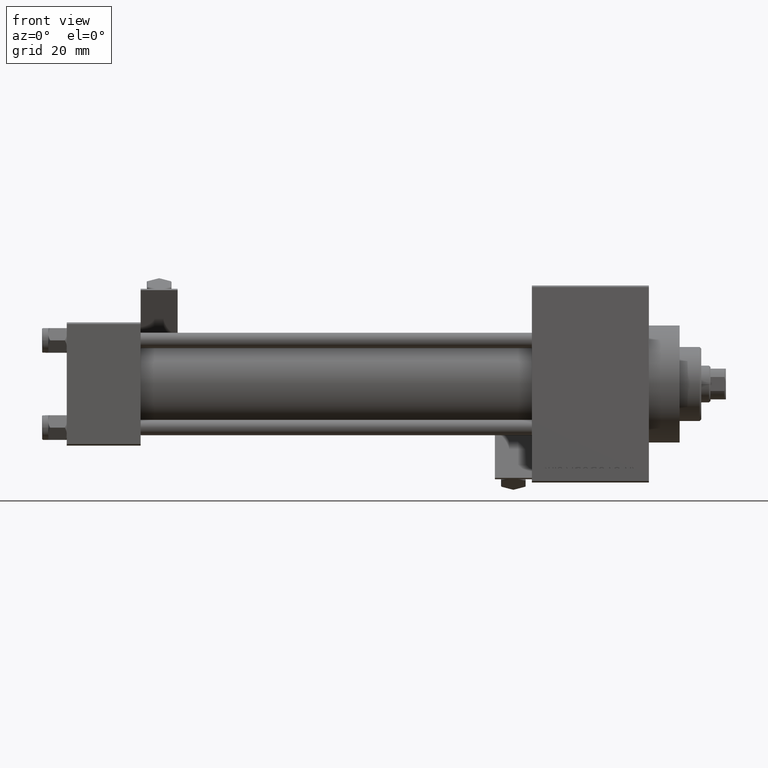
[diagram: clean part render]
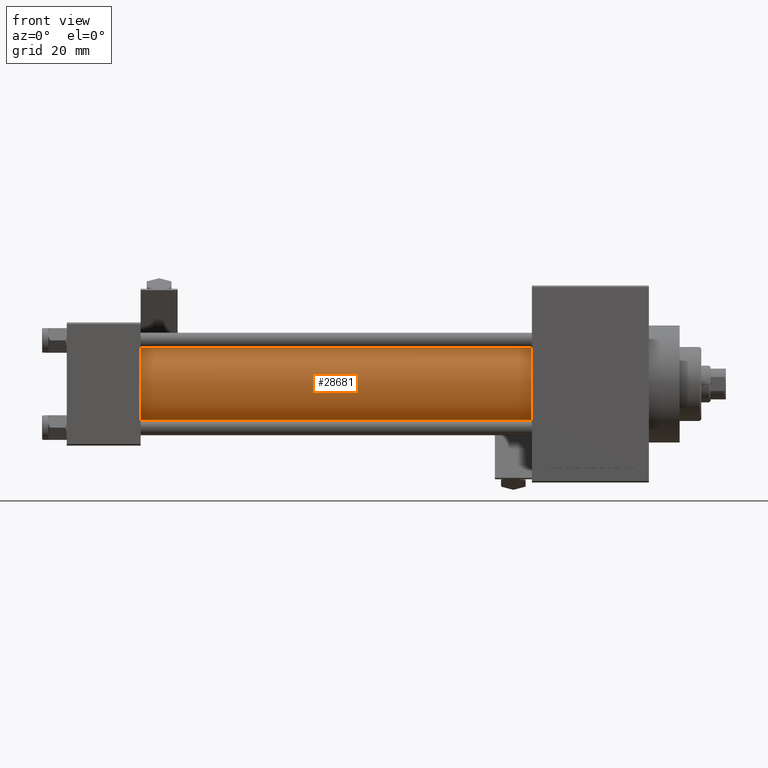
[diagram: same view with one face highlighted and labeled with its STEP entity id]
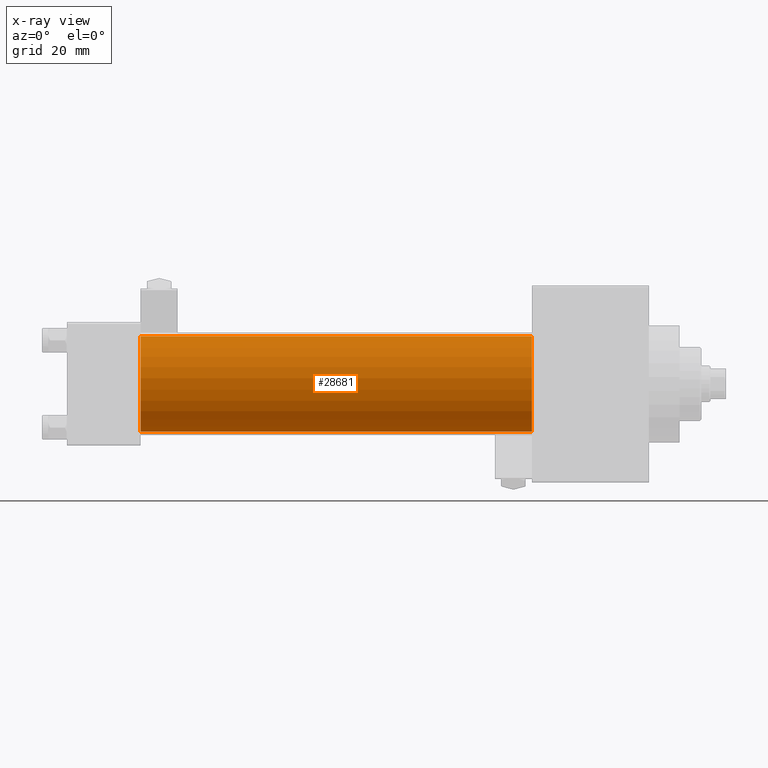
[diagram: x-ray of the same camera — body ghosted, the highlighted face saturated]
A machine part, front view. The second image highlights one B-rep face of the part: STEP entity #28681.
The next image is the same camera in x-ray: the body ghosted, the highlighted face saturated — about 0% of this face is hidden behind the body in this view.
In plain terms, the highlighted cylindrical surface (partial cylindrical patch) has radius 15.5 mm, axis along (-1, -0, -0).
Its self-contained STEP definition (entity closure, byte-faithful):
#531 = AXIS2_PLACEMENT_3D ( 'NONE', #45822, #41767, #34158 ) ;
#1195 = CARTESIAN_POINT ( 'NONE',  ( 23.99999999999999289, -2.602085213965210642E-15, 15.50000000000000000 ) ) ;
#2116 = DIRECTION ( 'NONE',  ( 0.000000000000000000, 0.000000000000000000, -1.000000000000000000 ) ) ;
#2139 = EDGE_CURVE ( 'NONE', #35009, #27141, #32767, .T. ) ;
#4995 = CARTESIAN_POINT ( 'NONE',  ( 23.99999999999999289, -7.038826752868131828E-16, -15.50000000000000000 ) ) ;
#5555 = VERTEX_POINT ( 'NONE', #20859 ) ;
#5687 = CARTESIAN_POINT ( 'NONE',  ( 151.0000000000000000, -2.602085213965210642E-15, 0.000000000000000000 ) ) ;
#6050 = ORIENTED_EDGE ( 'NONE', *, *, #2139, .F. ) ;
#8468 = CARTESIAN_POINT ( 'NONE',  ( 151.0000000000000000, -7.038826752868131828E-16, -15.50000000000000000 ) ) ;
#8981 = DIRECTION ( 'NONE',  ( 1.000000000000000000, 0.000000000000000000, 0.000000000000000000 ) ) ;
#10810 = DIRECTION ( 'NONE',  ( 1.000000000000000000, 0.000000000000000000, 0.000000000000000000 ) ) ;
#10930 = LINE ( 'NONE', #31198, #32485 ) ;
#13643 = VECTOR ( 'NONE', #45175, 1000.000000000000000 ) ;
#15799 = AXIS2_PLACEMENT_3D ( 'NONE', #5687, #8981, #2116 ) ;
#16326 = ORIENTED_EDGE ( 'NONE', *, *, #33664, .T. ) ;
#20859 = CARTESIAN_POINT ( 'NONE',  ( 151.0000000000000000, -2.602085213965210642E-15, 15.50000000000000000 ) ) ;
#20935 = AXIS2_PLACEMENT_3D ( 'NONE', #25771, #10810, #22716 ) ;
#22716 = DIRECTION ( 'NONE',  ( 0.000000000000000000, 0.000000000000000000, 1.000000000000000000 ) ) ;
#24070 = ORIENTED_EDGE ( 'NONE', *, *, #41987, .T. ) ;
#24184 = EDGE_CURVE ( 'NONE', #5555, #35009, #46578, .T. ) ;
#25771 = CARTESIAN_POINT ( 'NONE',  ( 23.99999999999999289, -2.602085213965210642E-15, 0.000000000000000000 ) ) ;
#27141 = VERTEX_POINT ( 'NONE', #4995 ) ;
#28681 = ADVANCED_FACE ( 'NONE', ( #46071 ), #49108, .T. ) ;
#29458 = CARTESIAN_POINT ( 'NONE',  ( 151.0000000000000000, -7.038826752868131828E-16, -15.50000000000000000 ) ) ;
#31198 = CARTESIAN_POINT ( 'NONE',  ( 151.0000000000000000, -2.602085213965210642E-15, 15.50000000000000000 ) ) ;
#32485 = VECTOR ( 'NONE', #46167, 1000.000000000000000 ) ;
#32744 = VERTEX_POINT ( 'NONE', #1195 ) ;
#32767 = LINE ( 'NONE', #29458, #13643 ) ;
#33664 = EDGE_CURVE ( 'NONE', #32744, #27141, #33896, .T. ) ;
#33896 = CIRCLE ( 'NONE', #20935, 15.50000000000000000 ) ;
#34158 = DIRECTION ( 'NONE',  ( 0.000000000000000000, 0.000000000000000000, 1.000000000000000000 ) ) ;
#35009 = VERTEX_POINT ( 'NONE', #8468 ) ;
#41027 = EDGE_LOOP ( 'NONE', ( #6050, #49251, #24070, #16326 ) ) ;
#41767 = DIRECTION ( 'NONE',  ( -1.000000000000000000, -0.000000000000000000, -0.000000000000000000 ) ) ;
#41987 = EDGE_CURVE ( 'NONE', #5555, #32744, #10930, .T. ) ;
#45175 = DIRECTION ( 'NONE',  ( -1.000000000000000000, -0.000000000000000000, -0.000000000000000000 ) ) ;
#45822 = CARTESIAN_POINT ( 'NONE',  ( 151.0000000000000000, -2.602085213965210642E-15, 0.000000000000000000 ) ) ;
#46071 = FACE_OUTER_BOUND ( 'NONE', #41027, .T. ) ;
#46167 = DIRECTION ( 'NONE',  ( -1.000000000000000000, -0.000000000000000000, -0.000000000000000000 ) ) ;
#46578 = CIRCLE ( 'NONE', #15799, 15.50000000000000000 ) ;
#49108 = CYLINDRICAL_SURFACE ( 'NONE', #531, 15.50000000000000000 ) ;
#49251 = ORIENTED_EDGE ( 'NONE', *, *, #24184, .F. ) ;